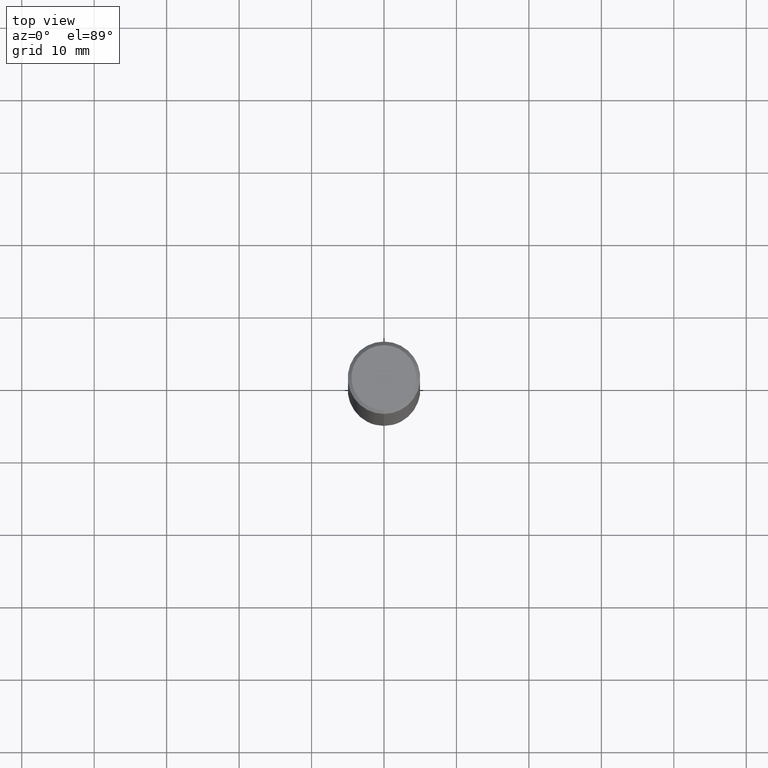
[diagram: clean part render]
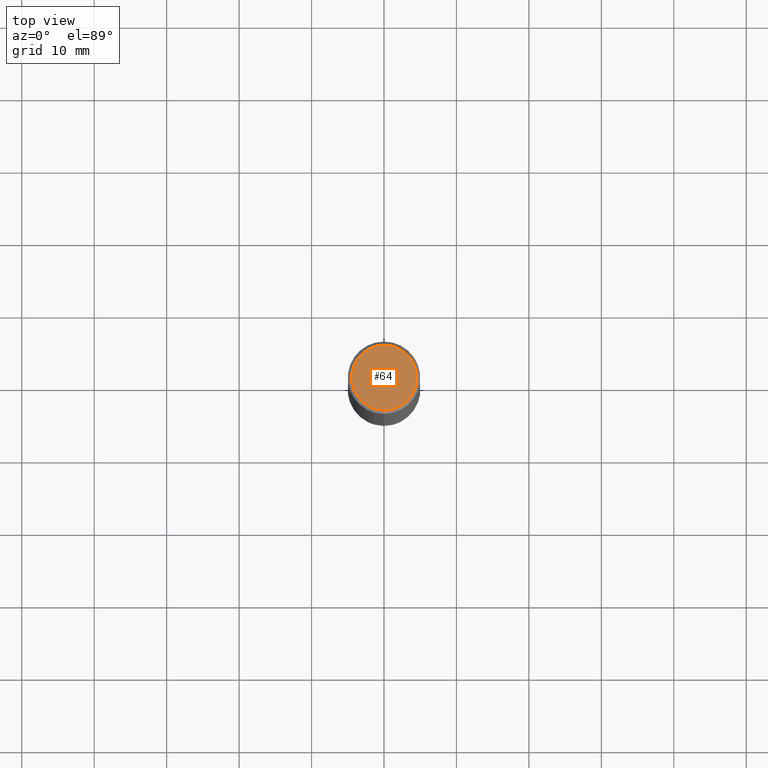
[diagram: same view with one face highlighted and labeled with its STEP entity id]
A machine part, top view. The second image highlights one B-rep face of the part: STEP entity #64.
In plain terms, the highlighted planar face has unit normal (-0, 0, 1).
Its self-contained STEP definition (entity closure, byte-faithful):
#64=ADVANCED_FACE('',(#156),#157,.T.);
#76=VERTEX_POINT('',#171);
#78=EDGE_CURVE('',#130,#76,#173,.T.);
#82=EDGE_CURVE('',#76,#130,#177,.T.);
#130=VERTEX_POINT('',#233);
#156=FACE_OUTER_BOUND('',#250,.T.);
#157=PLANE('',#251);
#171=CARTESIAN_POINT('',(0.0,4.5,0.0));
#173=CIRCLE('',#271,4.5);
#177=CIRCLE('',#277,4.5);
#233=CARTESIAN_POINT('',(5.5107285922007E-016,-4.5,0.0));
#250=EDGE_LOOP('',(#360,#361));
#251=AXIS2_PLACEMENT_3D('',#362,#363,#364);
#271=AXIS2_PLACEMENT_3D('',#377,#378,#379);
#277=AXIS2_PLACEMENT_3D('',#383,#384,#385);
#360=ORIENTED_EDGE('',*,*,#82,.F.);
#361=ORIENTED_EDGE('',*,*,#78,.F.);
#362=CARTESIAN_POINT('',(0.0,2.25,0.0));
#363=DIRECTION('',(-0.0,0.0,1.0));
#364=DIRECTION('',(0.0,-1.0,0.0));
#377=CARTESIAN_POINT('',(0.0,0.0,0.0));
#378=DIRECTION('',(0.0,0.0,-1.0));
#379=DIRECTION('',(0.0,1.0,0.0));
#383=CARTESIAN_POINT('',(0.0,0.0,0.0));
#384=DIRECTION('',(0.0,0.0,-1.0));
#385=DIRECTION('',(0.0,1.0,0.0));